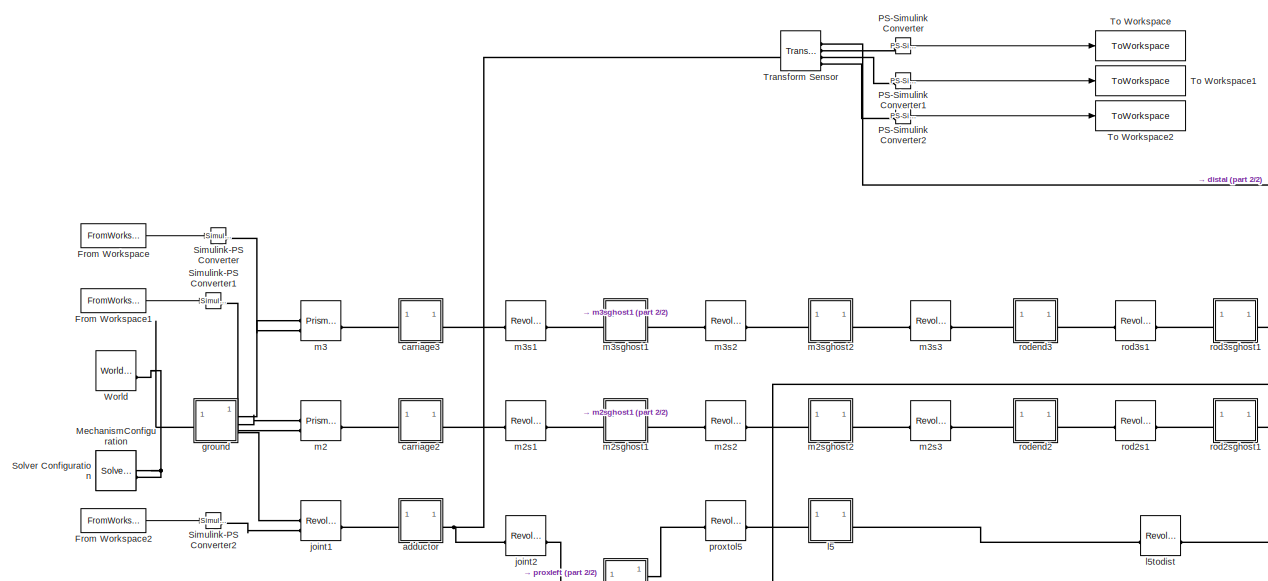
[diagram: root canvas - part 1/2, full width, middle band]
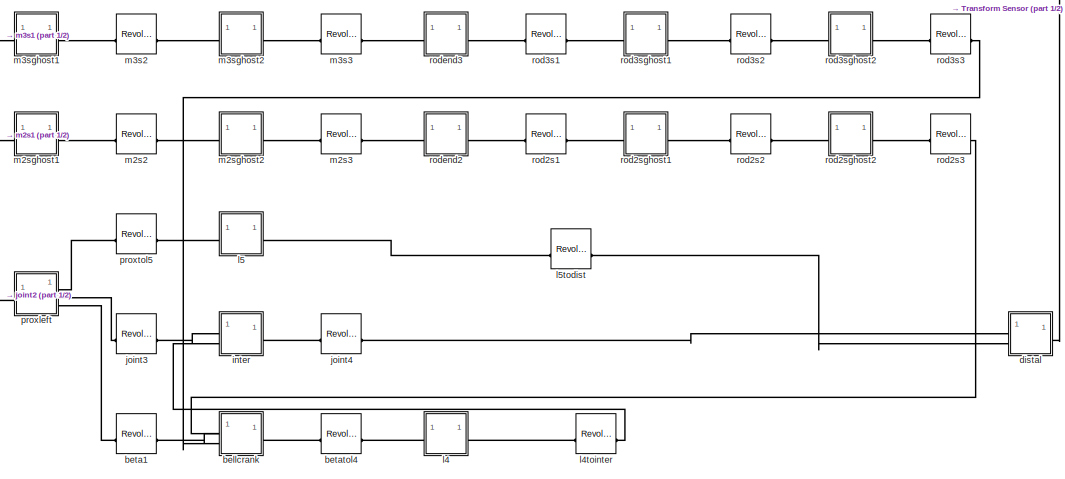
[diagram: root canvas - part 2/2, bottom right region]
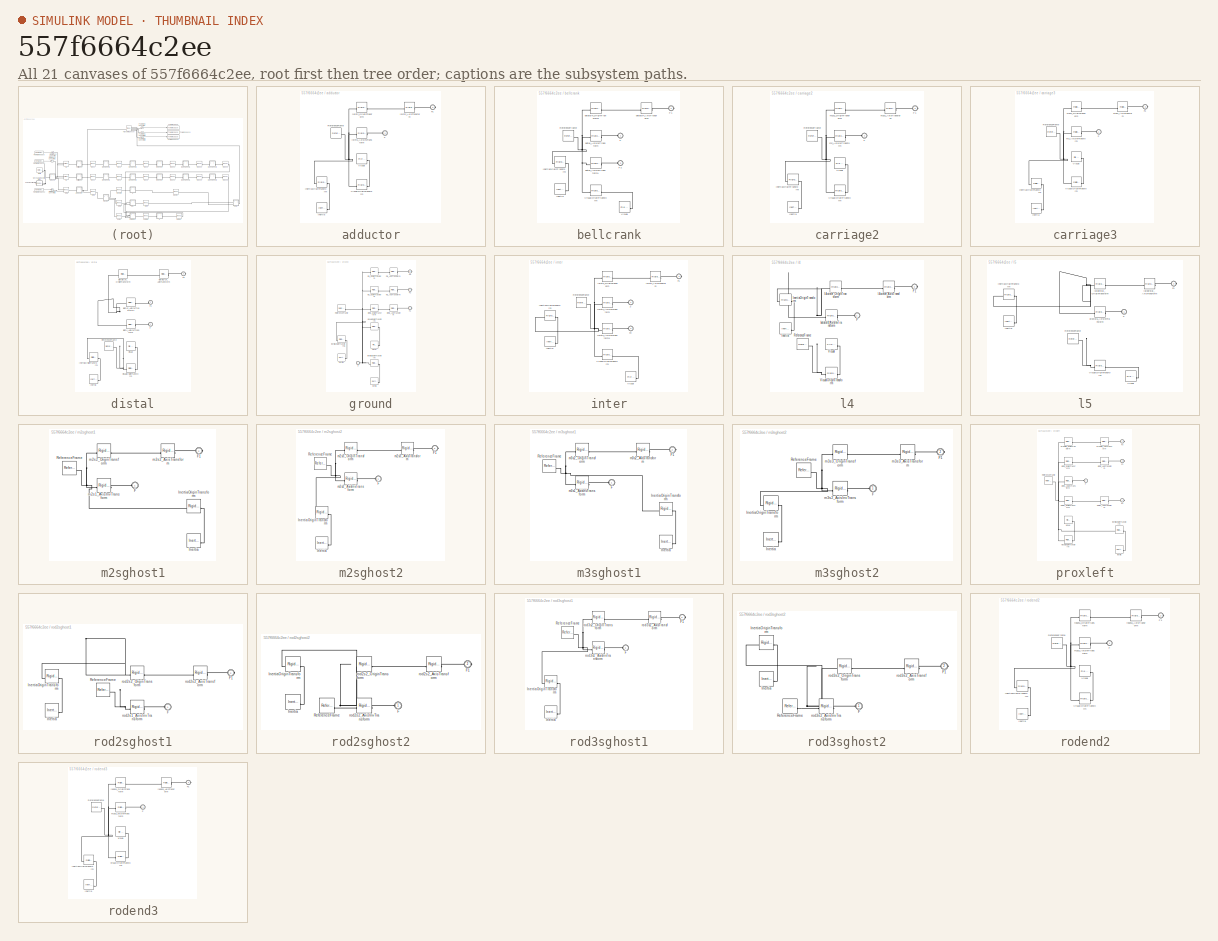
[diagram: thumbnail index - all 21 canvases of the model, root first then tree order]
MODEL slx_557f6664c2ee
KIND model
CONFIG AbsTol = auto
CONFIG EnableMultiTasking = off
CONFIG FixedStep = auto
CONFIG MaxStep = auto
CONFIG MinStep = auto
CONFIG RelTol = 1e-3
CONFIG SampleTimeConstraint = Unconstrained
CONFIG SolverName = VariableStepAuto
CONFIG StartTime = 0.0
CONFIG StopTime = .3
BLOCK [FromWorkspace] From Workspace
  VariableName = m3
BLOCK [FromWorkspace] From Workspace1
  VariableName = m2
BLOCK [FromWorkspace] From Workspace2
  VariableName = m1
BLOCK [Reference] MechanismConfiguration  REF=sm_lib/Utilities/Mechanism
Configuration
  SourceBlock = sm_lib/Utilities/Mechanism\nConfiguration
  SourceType = Mechanism\nConfiguration
BLOCK [Reference] PS-Simulink Converter  REF=nesl_utility/PS-Simulink
Converter
  SourceBlock = nesl_utility/PS-Simulink\nConverter
  SourceType = PS-Simulink\nConverter
BLOCK [Reference] PS-Simulink Converter1  REF=nesl_utility/PS-Simulink
Converter
  SourceBlock = nesl_utility/PS-Simulink\nConverter
  SourceType = PS-Simulink\nConverter
BLOCK [Reference] PS-Simulink Converter2  REF=nesl_utility/PS-Simulink
Converter
  SourceBlock = nesl_utility/PS-Simulink\nConverter
  SourceType = PS-Simulink\nConverter
BLOCK [Reference] Simulink-PS Converter  REF=nesl_utility/Simulink-PS
Converter
  SourceBlock = nesl_utility/Simulink-PS\nConverter
  SourceType = Simulink-PS\nConverter
BLOCK [Reference] Simulink-PS Converter1  REF=nesl_utility/Simulink-PS
Converter
  SourceBlock = nesl_utility/Simulink-PS\nConverter
  SourceType = Simulink-PS\nConverter
BLOCK [Reference] Simulink-PS Converter2  REF=nesl_utility/Simulink-PS
Converter
  SourceBlock = nesl_utility/Simulink-PS\nConverter
  SourceType = Simulink-PS\nConverter
BLOCK [Reference] Solver Configuration  REF=nesl_utility/Solver
Configuration
  SourceBlock = nesl_utility/Solver\nConfiguration
  SourceType = Solver\nConfiguration
BLOCK [ToWorkspace] To Workspace
  FixptAsFi = on
  MaxDataPoints = inf
  SampleTime = -1
  SaveFormat = Timeseries
  VariableName = simout
BLOCK [ToWorkspace] To Workspace1
  FixptAsFi = on
  MaxDataPoints = inf
  SampleTime = -1
  SaveFormat = Timeseries
  VariableName = simout1
BLOCK [ToWorkspace] To Workspace2
  FixptAsFi = on
  MaxDataPoints = inf
  SampleTime = -1
  SaveFormat = Timeseries
  VariableName = simout2
BLOCK [Reference] Transform Sensor  REF=sm_lib/Frames and
Transforms/Transform
Sensor
  SourceBlock = sm_lib/Frames and\nTransforms/Transform\nSensor
  SourceType = Transform\nSensor
BLOCK [Reference] World  REF=sm_lib/Frames and
Transforms/World Frame
  SourceBlock = sm_lib/Frames and\nTransforms/World Frame
  SourceType = World Frame
BLOCK [SubSystem] adductor
BLOCK [PMIOPort] adductor/F
  Side = Left
BLOCK [PMIOPort] adductor/F1
  Port = 2
  Side = Right
BLOCK [Reference] adductor/Inertia  REF=sm_lib/Body Elements/Inertia
  SourceBlock = sm_lib/Body Elements/Inertia
  SourceType = Inertia
BLOCK [Reference] adductor/InertiaOriginTransform  REF=sm_lib/Frames and
Transforms/Rigid
Transform
  SourceBlock = sm_lib/Frames and\nTransforms/Rigid\nTransform
  SourceType = Rigid\nTransform
BLOCK [Reference] adductor/ReferenceFrame  REF=sm_lib/Frames and
Transforms/Reference
Frame
  SourceBlock = sm_lib/Frames and\nTransforms/Reference\nFrame
  SourceType = Reference\nFrame
BLOCK [Reference] adductor/Visual  REF=sm_lib/Body Elements/File Solid
  SourceBlock = sm_lib/Body Elements/File Solid
  SourceType = File Solid
BLOCK [Reference] adductor/VisualOriginTransform  REF=sm_lib/Frames and
Transforms/Rigid
Transform
  SourceBlock = sm_lib/Frames and\nTransforms/Rigid\nTransform
  SourceType = Rigid\nTransform
BLOCK [Reference] adductor/joint1_AxisInvTransform  REF=sm_lib/Frames and
Transforms/Rigid
Transform
  SourceBlock = sm_lib/Frames and\nTransforms/Rigid\nTransform
  SourceType = Rigid\nTransform
BLOCK [Reference] adductor/joint2_AxisTransform  REF=sm_lib/Frames and
Transforms/Rigid
Transform
  SourceBlock = sm_lib/Frames and\nTransforms/Rigid\nTransform
  SourceType = Rigid\nTransform
BLOCK [Reference] adductor/joint2_OriginTransform  REF=sm_lib/Frames and
Transforms/Rigid
Transform
  SourceBlock = sm_lib/Frames and\nTransforms/Rigid\nTransform
  SourceType = Rigid\nTransform
BLOCK [SubSystem] bellcrank
BLOCK [PMIOPort] bellcrank/F
  Side = Left
BLOCK [PMIOPort] bellcrank/F1
  Port = 2
  Side = Right
BLOCK [PMIOPort] bellcrank/F2
  Port = 3
  Side = Left
BLOCK [Reference] bellcrank/Inertia  REF=sm_lib/Body Elements/Inertia
  SourceBlock = sm_lib/Body Elements/Inertia
  SourceType = Inertia
BLOCK [Reference] bellcrank/InertiaOriginTransform  REF=sm_lib/Frames and
Transforms/Rigid
Transform
  SourceBlock = sm_lib/Frames and\nTransforms/Rigid\nTransform
  SourceType = Rigid\nTransform
BLOCK [Reference] bellcrank/ReferenceFrame  REF=sm_lib/Frames and
Transforms/Reference
Frame
  SourceBlock = sm_lib/Frames and\nTransforms/Reference\nFrame
  SourceType = Reference\nFrame
BLOCK [Reference] bellcrank/Visual  REF=sm_lib/Body Elements/File Solid
  SourceBlock = sm_lib/Body Elements/File Solid
  SourceType = File Solid
BLOCK [Reference] bellcrank/VisualOriginTransform  REF=sm_lib/Frames and
Transforms/Rigid
Transform
  SourceBlock = sm_lib/Frames and\nTransforms/Rigid\nTransform
  SourceType = Rigid\nTransform
BLOCK [Reference] bellcrank/beta1_AxisInvTransform  REF=sm_lib/Frames and
Transforms/Rigid
Transform
  SourceBlock = sm_lib/Frames and\nTransforms/Rigid\nTransform
  SourceType = Rigid\nTransform
BLOCK [Reference] bellcrank/beta1_AxisInvTransform1  REF=sm_lib/Frames and
Transforms/Rigid
Transform
  SourceBlock = sm_lib/Frames and\nTransforms/Rigid\nTransform
  SourceType = Rigid\nTransform
BLOCK [Reference] bellcrank/betatol4_AxisTransform  REF=sm_lib/Frames and
Transforms/Rigid
Transform
  SourceBlock = sm_lib/Frames and\nTransforms/Rigid\nTransform
  SourceType = Rigid\nTransform
BLOCK [Reference] bellcrank/betatol4_OriginTransform  REF=sm_lib/Frames and
Transforms/Rigid
Transform
  SourceBlock = sm_lib/Frames and\nTransforms/Rigid\nTransform
  SourceType = Rigid\nTransform
BLOCK [Reference] beta1  REF=sm_lib/Joints/Revolute Joint
  SourceBlock = sm_lib/Joints/Revolute Joint
  SourceType = Revolute Joint
BLOCK [Reference] betatol4  REF=sm_lib/Joints/Revolute Joint
  SourceBlock = sm_lib/Joints/Revolute Joint
  SourceType = Revolute Joint
BLOCK [SubSystem] carriage2
BLOCK [PMIOPort] carriage2/F
  Side = Left
BLOCK [PMIOPort] carriage2/F1
  Port = 2
  Side = Right
BLOCK [Reference] carriage2/Inertia  REF=sm_lib/Body Elements/Inertia
  SourceBlock = sm_lib/Body Elements/Inertia
  SourceType = Inertia
BLOCK [Reference] carriage2/InertiaOriginTransform  REF=sm_lib/Frames and
Transforms/Rigid
Transform
  SourceBlock = sm_lib/Frames and\nTransforms/Rigid\nTransform
  SourceType = Rigid\nTransform
BLOCK [Reference] carriage2/ReferenceFrame  REF=sm_lib/Frames and
Transforms/Reference
Frame
  SourceBlock = sm_lib/Frames and\nTransforms/Reference\nFrame
  SourceType = Reference\nFrame
BLOCK [Reference] carriage2/Visual  REF=sm_lib/Body Elements/File Solid
  SourceBlock = sm_lib/Body Elements/File Solid
  SourceType = File Solid
BLOCK [Reference] carriage2/VisualOriginTransform  REF=sm_lib/Frames and
Transforms/Rigid
Transform
  SourceBlock = sm_lib/Frames and\nTransforms/Rigid\nTransform
  SourceType = Rigid\nTransform
BLOCK [Reference] carriage2/m2_AxisInvTransform  REF=sm_lib/Frames and
Transforms/Rigid
Transform
  SourceBlock = sm_lib/Frames and\nTransforms/Rigid\nTransform
  SourceType = Rigid\nTransform
BLOCK [Reference] carriage2/m2s1_AxisTransform  REF=sm_lib/Frames and
Transforms/Rigid
Transform
  SourceBlock = sm_lib/Frames and\nTransforms/Rigid\nTransform
  SourceType = Rigid\nTransform
BLOCK [Reference] carriage2/m2s1_OriginTransform  REF=sm_lib/Frames and
Transforms/Rigid
Transform
  SourceBlock = sm_lib/Frames and\nTransforms/Rigid\nTransform
  SourceType = Rigid\nTransform
BLOCK [SubSystem] carriage3
BLOCK [PMIOPort] carriage3/F
  Side = Left
BLOCK [PMIOPort] carriage3/F1
  Port = 2
  Side = Right
BLOCK [Reference] carriage3/Inertia  REF=sm_lib/Body Elements/Inertia
  SourceBlock = sm_lib/Body Elements/Inertia
  SourceType = Inertia
BLOCK [Reference] carriage3/InertiaOriginTransform  REF=sm_lib/Frames and
Transforms/Rigid
Transform
  SourceBlock = sm_lib/Frames and\nTransforms/Rigid\nTransform
  SourceType = Rigid\nTransform
BLOCK [Reference] carriage3/ReferenceFrame  REF=sm_lib/Frames and
Transforms/Reference
Frame
  SourceBlock = sm_lib/Frames and\nTransforms/Reference\nFrame
  SourceType = Reference\nFrame
BLOCK [Reference] carriage3/Visual  REF=sm_lib/Body Elements/File Solid
  SourceBlock = sm_lib/Body Elements/File Solid
  SourceType = File Solid
BLOCK [Reference] carriage3/VisualOriginTransform  REF=sm_lib/Frames and
Transforms/Rigid
Transform
  SourceBlock = sm_lib/Frames and\nTransforms/Rigid\nTransform
  SourceType = Rigid\nTransform
BLOCK [Reference] carriage3/m3_AxisInvTransform  REF=sm_lib/Frames and
Transforms/Rigid
Transform
  SourceBlock = sm_lib/Frames and\nTransforms/Rigid\nTransform
  SourceType = Rigid\nTransform
BLOCK [Reference] carriage3/m3s1_AxisTransform  REF=sm_lib/Frames and
Transforms/Rigid
Transform
  SourceBlock = sm_lib/Frames and\nTransforms/Rigid\nTransform
  SourceType = Rigid\nTransform
BLOCK [Reference] carriage3/m3s1_OriginTransform  REF=sm_lib/Frames and
Transforms/Rigid
Transform
  SourceBlock = sm_lib/Frames and\nTransforms/Rigid\nTransform
  SourceType = Rigid\nTransform
BLOCK [SubSystem] distal
BLOCK [PMIOPort] distal/F
  Side = Left
BLOCK [PMIOPort] distal/F1
  Port = 2
  Side = Left
BLOCK [PMIOPort] distal/F2
  Port = 3
  Side = Right
BLOCK [Reference] distal/Inertia  REF=sm_lib/Body Elements/Inertia
  SourceBlock = sm_lib/Body Elements/Inertia
  SourceType = Inertia
BLOCK [Reference] distal/InertiaOriginTransform  REF=sm_lib/Frames and
Transforms/Rigid
Transform
  SourceBlock = sm_lib/Frames and\nTransforms/Rigid\nTransform
  SourceType = Rigid\nTransform
BLOCK [Reference] distal/ReferenceFrame  REF=sm_lib/Frames and
Transforms/Reference
Frame
  SourceBlock = sm_lib/Frames and\nTransforms/Reference\nFrame
  SourceType = Reference\nFrame
BLOCK [Reference] distal/Visual  REF=sm_lib/Body Elements/File Solid
  SourceBlock = sm_lib/Body Elements/File Solid
  SourceType = File Solid
BLOCK [Reference] distal/VisualOriginTransform  REF=sm_lib/Frames and
Transforms/Rigid
Transform
  SourceBlock = sm_lib/Frames and\nTransforms/Rigid\nTransform
  SourceType = Rigid\nTransform
BLOCK [Reference] distal/distalOUT_AxisTransform  REF=sm_lib/Frames and
Transforms/Rigid
Transform
  SourceBlock = sm_lib/Frames and\nTransforms/Rigid\nTransform
  SourceType = Rigid\nTransform
BLOCK [Reference] distal/distalOUT_OriginTransform  REF=sm_lib/Frames and
Transforms/Rigid
Transform
  SourceBlock = sm_lib/Frames and\nTransforms/Rigid\nTransform
  SourceType = Rigid\nTransform
BLOCK [Reference] distal/joint42_AxisInvTransform1  REF=sm_lib/Frames and
Transforms/Rigid
Transform
  SourceBlock = sm_lib/Frames and\nTransforms/Rigid\nTransform
  SourceType = Rigid\nTransform
BLOCK [Reference] distal/joint4_AxisInvTransform  REF=sm_lib/Frames and
Transforms/Rigid
Transform
  SourceBlock = sm_lib/Frames and\nTransforms/Rigid\nTransform
  SourceType = Rigid\nTransform
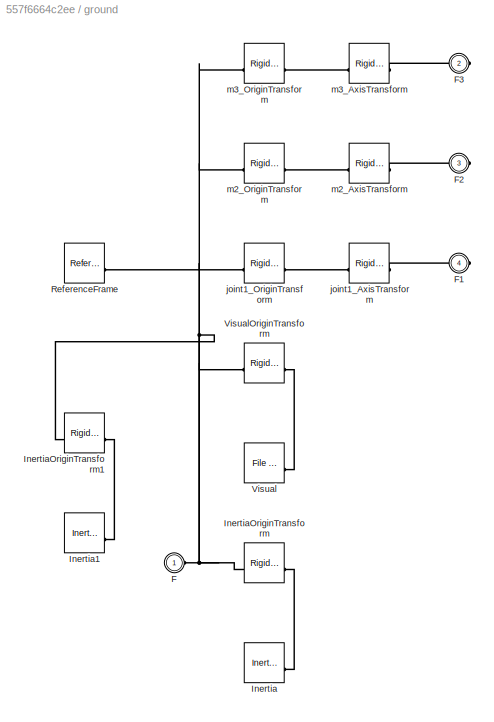
BLOCK [SubSystem] ground
BLOCK [PMIOPort] ground/F
  Side = Left
BLOCK [PMIOPort] ground/F1
  Port = 4
  Side = Right
BLOCK [PMIOPort] ground/F2
  Port = 3
  Side = Right
BLOCK [PMIOPort] ground/F3
  Port = 2
  Side = Right
BLOCK [Reference] ground/Inertia  REF=sm_lib/Body Elements/Inertia
  SourceBlock = sm_lib/Body Elements/Inertia
  SourceType = Inertia
BLOCK [Reference] ground/Inertia1  REF=sm_lib/Body Elements/Inertia
  SourceBlock = sm_lib/Body Elements/Inertia
  SourceType = Inertia
BLOCK [Reference] ground/InertiaOriginTransform  REF=sm_lib/Frames and
Transforms/Rigid
Transform
  SourceBlock = sm_lib/Frames and\nTransforms/Rigid\nTransform
  SourceType = Rigid\nTransform
BLOCK [Reference] ground/InertiaOriginTransform1  REF=sm_lib/Frames and
Transforms/Rigid
Transform
  SourceBlock = sm_lib/Frames and\nTransforms/Rigid\nTransform
  SourceType = Rigid\nTransform
BLOCK [Reference] ground/ReferenceFrame  REF=sm_lib/Frames and
Transforms/Reference
Frame
  SourceBlock = sm_lib/Frames and\nTransforms/Reference\nFrame
  SourceType = Reference\nFrame
BLOCK [Reference] ground/Visual  REF=sm_lib/Body Elements/File Solid
  SourceBlock = sm_lib/Body Elements/File Solid
  SourceType = File Solid
BLOCK [Reference] ground/VisualOriginTransform  REF=sm_lib/Frames and
Transforms/Rigid
Transform
  SourceBlock = sm_lib/Frames and\nTransforms/Rigid\nTransform
  SourceType = Rigid\nTransform
BLOCK [Reference] ground/joint1_AxisTransform  REF=sm_lib/Frames and
Transforms/Rigid
Transform
  SourceBlock = sm_lib/Frames and\nTransforms/Rigid\nTransform
  SourceType = Rigid\nTransform
BLOCK [Reference] ground/joint1_OriginTransform  REF=sm_lib/Frames and
Transforms/Rigid
Transform
  SourceBlock = sm_lib/Frames and\nTransforms/Rigid\nTransform
  SourceType = Rigid\nTransform
BLOCK [Reference] ground/m2_AxisTransform  REF=sm_lib/Frames and
Transforms/Rigid
Transform
  SourceBlock = sm_lib/Frames and\nTransforms/Rigid\nTransform
  SourceType = Rigid\nTransform
BLOCK [Reference] ground/m2_OriginTransform  REF=sm_lib/Frames and
Transforms/Rigid
Transform
  SourceBlock = sm_lib/Frames and\nTransforms/Rigid\nTransform
  SourceType = Rigid\nTransform
BLOCK [Reference] ground/m3_AxisTransform  REF=sm_lib/Frames and
Transforms/Rigid
Transform
  SourceBlock = sm_lib/Frames and\nTransforms/Rigid\nTransform
  SourceType = Rigid\nTransform
BLOCK [Reference] ground/m3_OriginTransform  REF=sm_lib/Frames and
Transforms/Rigid
Transform
  SourceBlock = sm_lib/Frames and\nTransforms/Rigid\nTransform
  SourceType = Rigid\nTransform
BLOCK [SubSystem] inter
BLOCK [PMIOPort] inter/F
  Side = Left
BLOCK [PMIOPort] inter/F1
  Port = 2
  Side = Right
BLOCK [PMIOPort] inter/F2
  Port = 3
  Side = Left
BLOCK [Reference] inter/Inertia  REF=sm_lib/Body Elements/Inertia
  SourceBlock = sm_lib/Body Elements/Inertia
  SourceType = Inertia
BLOCK [Reference] inter/InertiaOriginTransform  REF=sm_lib/Frames and
Transforms/Rigid
Transform
  SourceBlock = sm_lib/Frames and\nTransforms/Rigid\nTransform
  SourceType = Rigid\nTransform
BLOCK [Reference] inter/ReferenceFrame  REF=sm_lib/Frames and
Transforms/Reference
Frame
  SourceBlock = sm_lib/Frames and\nTransforms/Reference\nFrame
  SourceType = Reference\nFrame
BLOCK [Reference] inter/Visual  REF=sm_lib/Body Elements/File Solid
  SourceBlock = sm_lib/Body Elements/File Solid
  SourceType = File Solid
BLOCK [Reference] inter/VisualOriginTransform  REF=sm_lib/Frames and
Transforms/Rigid
Transform
  SourceBlock = sm_lib/Frames and\nTransforms/Rigid\nTransform
  SourceType = Rigid\nTransform
BLOCK [Reference] inter/joint3_AxisInvTransform  REF=sm_lib/Frames and
Transforms/Rigid
Transform
  SourceBlock = sm_lib/Frames and\nTransforms/Rigid\nTransform
  SourceType = Rigid\nTransform
BLOCK [Reference] inter/joint3_AxisInvTransform1  REF=sm_lib/Frames and
Transforms/Rigid
Transform
  SourceBlock = sm_lib/Frames and\nTransforms/Rigid\nTransform
  SourceType = Rigid\nTransform
BLOCK [Reference] inter/joint4_AxisTransform  REF=sm_lib/Frames and
Transforms/Rigid
Transform
  SourceBlock = sm_lib/Frames and\nTransforms/Rigid\nTransform
  SourceType = Rigid\nTransform
BLOCK [Reference] inter/joint4_OriginTransform  REF=sm_lib/Frames and
Transforms/Rigid
Transform
  SourceBlock = sm_lib/Frames and\nTransforms/Rigid\nTransform
  SourceType = Rigid\nTransform
BLOCK [Reference] joint1  REF=sm_lib/Joints/Revolute Joint
  SourceBlock = sm_lib/Joints/Revolute Joint
  SourceType = Revolute Joint
BLOCK [Reference] joint2  REF=sm_lib/Joints/Revolute Joint
  SourceBlock = sm_lib/Joints/Revolute Joint
  SourceType = Revolute Joint
BLOCK [Reference] joint3  REF=sm_lib/Joints/Revolute Joint
  SourceBlock = sm_lib/Joints/Revolute Joint
  SourceType = Revolute Joint
BLOCK [Reference] joint4  REF=sm_lib/Joints/Revolute Joint
  SourceBlock = sm_lib/Joints/Revolute Joint
  SourceType = Revolute Joint
BLOCK [SubSystem] l4
BLOCK [PMIOPort] l4/F
  Side = Left
BLOCK [PMIOPort] l4/F1
  Port = 2
  Side = Right
BLOCK [Reference] l4/Inertia  REF=sm_lib/Body Elements/Inertia
  SourceBlock = sm_lib/Body Elements/Inertia
  SourceType = Inertia
BLOCK [Reference] l4/InertiaOriginTransform  REF=sm_lib/Frames and
Transforms/Rigid
Transform
  SourceBlock = sm_lib/Frames and\nTransforms/Rigid\nTransform
  SourceType = Rigid\nTransform
BLOCK [Reference] l4/ReferenceFrame  REF=sm_lib/Frames and
Transforms/Reference
Frame
  SourceBlock = sm_lib/Frames and\nTransforms/Reference\nFrame
  SourceType = Reference\nFrame
BLOCK [Reference] l4/Visual  REF=sm_lib/Body Elements/File Solid
  SourceBlock = sm_lib/Body Elements/File Solid
  SourceType = File Solid
BLOCK [Reference] l4/VisualOriginTransform  REF=sm_lib/Frames and
Transforms/Rigid
Transform
  SourceBlock = sm_lib/Frames and\nTransforms/Rigid\nTransform
  SourceType = Rigid\nTransform
BLOCK [Reference] l4/betatol4_AxisInvTransform  REF=sm_lib/Frames and
Transforms/Rigid
Transform
  SourceBlock = sm_lib/Frames and\nTransforms/Rigid\nTransform
  SourceType = Rigid\nTransform
BLOCK [Reference] l4/l4tointer_AxisTransform  REF=sm_lib/Frames and
Transforms/Rigid
Transform
  SourceBlock = sm_lib/Frames and\nTransforms/Rigid\nTransform
  SourceType = Rigid\nTransform
BLOCK [Reference] l4/l4tointer_OriginTransform  REF=sm_lib/Frames and
Transforms/Rigid
Transform
  SourceBlock = sm_lib/Frames and\nTransforms/Rigid\nTransform
  SourceType = Rigid\nTransform
BLOCK [Reference] l4tointer  REF=sm_lib/Joints/Revolute Joint
  SourceBlock = sm_lib/Joints/Revolute Joint
  SourceType = Revolute Joint
BLOCK [SubSystem] l5
BLOCK [PMIOPort] l5/F
  Side = Left
BLOCK [PMIOPort] l5/F1
  Port = 2
  Side = Right
BLOCK [Reference] l5/Inertia  REF=sm_lib/Body Elements/Inertia
  SourceBlock = sm_lib/Body Elements/Inertia
  SourceType = Inertia
BLOCK [Reference] l5/InertiaOriginTransform  REF=sm_lib/Frames and
Transforms/Rigid
Transform
  SourceBlock = sm_lib/Frames and\nTransforms/Rigid\nTransform
  SourceType = Rigid\nTransform
BLOCK [Reference] l5/ReferenceFrame  REF=sm_lib/Frames and
Transforms/Reference
Frame
  SourceBlock = sm_lib/Frames and\nTransforms/Reference\nFrame
  SourceType = Reference\nFrame
BLOCK [Reference] l5/Visual  REF=sm_lib/Body Elements/File Solid
  SourceBlock = sm_lib/Body Elements/File Solid
  SourceType = File Solid
BLOCK [Reference] l5/VisualOriginTransform  REF=sm_lib/Frames and
Transforms/Rigid
Transform
  SourceBlock = sm_lib/Frames and\nTransforms/Rigid\nTransform
  SourceType = Rigid\nTransform
BLOCK [Reference] l5/l5todistal_AxisTransform  REF=sm_lib/Frames and
Transforms/Rigid
Transform
  SourceBlock = sm_lib/Frames and\nTransforms/Rigid\nTransform
  SourceType = Rigid\nTransform
BLOCK [Reference] l5/l5todistal_OriginTransform  REF=sm_lib/Frames and
Transforms/Rigid
Transform
  SourceBlock = sm_lib/Frames and\nTransforms/Rigid\nTransform
  SourceType = Rigid\nTransform
BLOCK [Reference] l5/proxtol5_AxisInvTransform  REF=sm_lib/Frames and
Transforms/Rigid
Transform
  SourceBlock = sm_lib/Frames and\nTransforms/Rigid\nTransform
  SourceType = Rigid\nTransform
BLOCK [Reference] l5todist  REF=sm_lib/Joints/Revolute Joint
  SourceBlock = sm_lib/Joints/Revolute Joint
  SourceType = Revolute Joint
BLOCK [Reference] m2  REF=sm_lib/Joints/Prismatic
Joint
  SourceBlock = sm_lib/Joints/Prismatic\nJoint
  SourceType = Prismatic\nJoint
BLOCK [Reference] m2s1  REF=sm_lib/Joints/Revolute Joint
  SourceBlock = sm_lib/Joints/Revolute Joint
  SourceType = Revolute Joint
BLOCK [Reference] m2s2  REF=sm_lib/Joints/Revolute Joint
  SourceBlock = sm_lib/Joints/Revolute Joint
  SourceType = Revolute Joint
BLOCK [Reference] m2s3  REF=sm_lib/Joints/Revolute Joint
  SourceBlock = sm_lib/Joints/Revolute Joint
  SourceType = Revolute Joint
BLOCK [SubSystem] m2sghost1
BLOCK [PMIOPort] m2sghost1/F
  Side = Left
BLOCK [PMIOPort] m2sghost1/F1
  Port = 2
  Side = Right
BLOCK [Reference] m2sghost1/Inertia  REF=sm_lib/Body Elements/Inertia
  SourceBlock = sm_lib/Body Elements/Inertia
  SourceType = Inertia
BLOCK [Reference] m2sghost1/InertiaOriginTransform  REF=sm_lib/Frames and
Transforms/Rigid
Transform
  SourceBlock = sm_lib/Frames and\nTransforms/Rigid\nTransform
  SourceType = Rigid\nTransform
BLOCK [Reference] m2sghost1/ReferenceFrame  REF=sm_lib/Frames and
Transforms/Reference
Frame
  SourceBlock = sm_lib/Frames and\nTransforms/Reference\nFrame
  SourceType = Reference\nFrame
BLOCK [Reference] m2sghost1/m2s1_AxisInvTransform  REF=sm_lib/Frames and
Transforms/Rigid
Transform
  SourceBlock = sm_lib/Frames and\nTransforms/Rigid\nTransform
  SourceType = Rigid\nTransform
BLOCK [Reference] m2sghost1/m2s2_AxisTransform  REF=sm_lib/Frames and
Transforms/Rigid
Transform
  SourceBlock = sm_lib/Frames and\nTransforms/Rigid\nTransform
  SourceType = Rigid\nTransform
BLOCK [Reference] m2sghost1/m2s2_OriginTransform  REF=sm_lib/Frames and
Transforms/Rigid
Transform
  SourceBlock = sm_lib/Frames and\nTransforms/Rigid\nTransform
  SourceType = Rigid\nTransform
BLOCK [SubSystem] m2sghost2
BLOCK [PMIOPort] m2sghost2/F
  Side = Left
BLOCK [PMIOPort] m2sghost2/F1
  Port = 2
  Side = Right
BLOCK [Reference] m2sghost2/Inertia  REF=sm_lib/Body Elements/Inertia
  SourceBlock = sm_lib/Body Elements/Inertia
  SourceType = Inertia
BLOCK [Reference] m2sghost2/InertiaOriginTransform  REF=sm_lib/Frames and
Transforms/Rigid
Transform
  SourceBlock = sm_lib/Frames and\nTransforms/Rigid\nTransform
  SourceType = Rigid\nTransform
BLOCK [Reference] m2sghost2/ReferenceFrame  REF=sm_lib/Frames and
Transforms/Reference
Frame
  SourceBlock = sm_lib/Frames and\nTransforms/Reference\nFrame
  SourceType = Reference\nFrame
BLOCK [Reference] m2sghost2/m2s2_AxisInvTransform  REF=sm_lib/Frames and
Transforms/Rigid
Transform
  SourceBlock = sm_lib/Frames and\nTransforms/Rigid\nTransform
  SourceType = Rigid\nTransform
BLOCK [Reference] m2sghost2/m2s3_AxisTransform  REF=sm_lib/Frames and
Transforms/Rigid
Transform
  SourceBlock = sm_lib/Frames and\nTransforms/Rigid\nTransform
  SourceType = Rigid\nTransform
BLOCK [Reference] m2sghost2/m2s3_OriginTransform  REF=sm_lib/Frames and
Transforms/Rigid
Transform
  SourceBlock = sm_lib/Frames and\nTransforms/Rigid\nTransform
  SourceType = Rigid\nTransform
BLOCK [Reference] m3  REF=sm_lib/Joints/Prismatic
Joint
  SourceBlock = sm_lib/Joints/Prismatic\nJoint
  SourceType = Prismatic\nJoint
BLOCK [Reference] m3s1  REF=sm_lib/Joints/Revolute Joint
  SourceBlock = sm_lib/Joints/Revolute Joint
  SourceType = Revolute Joint
BLOCK [Reference] m3s2  REF=sm_lib/Joints/Revolute Joint
  SourceBlock = sm_lib/Joints/Revolute Joint
  SourceType = Revolute Joint
BLOCK [Reference] m3s3  REF=sm_lib/Joints/Revolute Joint
  SourceBlock = sm_lib/Joints/Revolute Joint
  SourceType = Revolute Joint
BLOCK [SubSystem] m3sghost1
BLOCK [PMIOPort] m3sghost1/F
  Side = Left
BLOCK [PMIOPort] m3sghost1/F1
  Port = 2
  Side = Right
BLOCK [Reference] m3sghost1/Inertia  REF=sm_lib/Body Elements/Inertia
  SourceBlock = sm_lib/Body Elements/Inertia
  SourceType = Inertia
BLOCK [Reference] m3sghost1/InertiaOriginTransform  REF=sm_lib/Frames and
Transforms/Rigid
Transform
  SourceBlock = sm_lib/Frames and\nTransforms/Rigid\nTransform
  SourceType = Rigid\nTransform
BLOCK [Reference] m3sghost1/ReferenceFrame  REF=sm_lib/Frames and
Transforms/Reference
Frame
  SourceBlock = sm_lib/Frames and\nTransforms/Reference\nFrame
  SourceType = Reference\nFrame
BLOCK [Reference] m3sghost1/m3s1_AxisInvTransform  REF=sm_lib/Frames and
Transforms/Rigid
Transform
  SourceBlock = sm_lib/Frames and\nTransforms/Rigid\nTransform
  SourceType = Rigid\nTransform
BLOCK [Reference] m3sghost1/m3s2_AxisTransform  REF=sm_lib/Frames and
Transforms/Rigid
Transform
  SourceBlock = sm_lib/Frames and\nTransforms/Rigid\nTransform
  SourceType = Rigid\nTransform
BLOCK [Reference] m3sghost1/m3s2_OriginTransform  REF=sm_lib/Frames and
Transforms/Rigid
Transform
  SourceBlock = sm_lib/Frames and\nTransforms/Rigid\nTransform
  SourceType = Rigid\nTransform
BLOCK [SubSystem] m3sghost2
BLOCK [PMIOPort] m3sghost2/F
  Side = Left
BLOCK [PMIOPort] m3sghost2/F1
  Port = 2
  Side = Right
BLOCK [Reference] m3sghost2/Inertia  REF=sm_lib/Body Elements/Inertia
  SourceBlock = sm_lib/Body Elements/Inertia
  SourceType = Inertia
BLOCK [Reference] m3sghost2/InertiaOriginTransform  REF=sm_lib/Frames and
Transforms/Rigid
Transform
  SourceBlock = sm_lib/Frames and\nTransforms/Rigid\nTransform
  SourceType = Rigid\nTransform
BLOCK [Reference] m3sghost2/ReferenceFrame  REF=sm_lib/Frames and
Transforms/Reference
Frame
  SourceBlock = sm_lib/Frames and\nTransforms/Reference\nFrame
  SourceType = Reference\nFrame
BLOCK [Reference] m3sghost2/m3s2_AxisInvTransform  REF=sm_lib/Frames and
Transforms/Rigid
Transform
  SourceBlock = sm_lib/Frames and\nTransforms/Rigid\nTransform
  SourceType = Rigid\nTransform
BLOCK [Reference] m3sghost2/m3s3_AxisTransform  REF=sm_lib/Frames and
Transforms/Rigid
Transform
  SourceBlock = sm_lib/Frames and\nTransforms/Rigid\nTransform
  SourceType = Rigid\nTransform
BLOCK [Reference] m3sghost2/m3s3_OriginTransform  REF=sm_lib/Frames and
Transforms/Rigid
Transform
  SourceBlock = sm_lib/Frames and\nTransforms/Rigid\nTransform
  SourceType = Rigid\nTransform
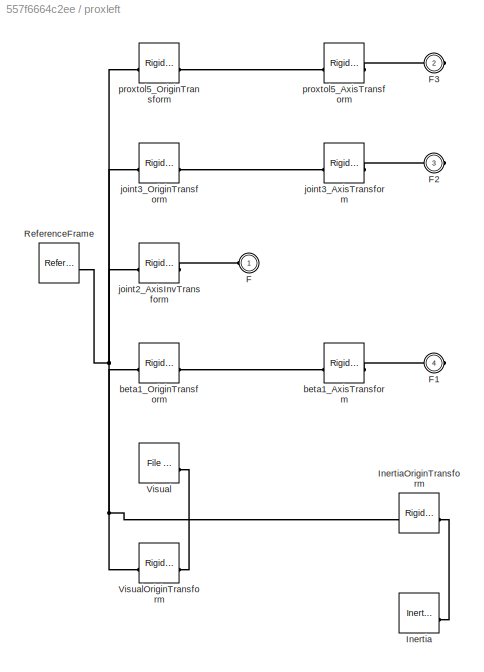
BLOCK [SubSystem] proxleft
BLOCK [PMIOPort] proxleft/F
  Side = Left
BLOCK [PMIOPort] proxleft/F1
  Port = 4
  Side = Right
BLOCK [PMIOPort] proxleft/F2
  Port = 3
  Side = Right
BLOCK [PMIOPort] proxleft/F3
  Port = 2
  Side = Right
BLOCK [Reference] proxleft/Inertia  REF=sm_lib/Body Elements/Inertia
  SourceBlock = sm_lib/Body Elements/Inertia
  SourceType = Inertia
BLOCK [Reference] proxleft/InertiaOriginTransform  REF=sm_lib/Frames and
Transforms/Rigid
Transform
  SourceBlock = sm_lib/Frames and\nTransforms/Rigid\nTransform
  SourceType = Rigid\nTransform
BLOCK [Reference] proxleft/ReferenceFrame  REF=sm_lib/Frames and
Transforms/Reference
Frame
  SourceBlock = sm_lib/Frames and\nTransforms/Reference\nFrame
  SourceType = Reference\nFrame
BLOCK [Reference] proxleft/Visual  REF=sm_lib/Body Elements/File Solid
  SourceBlock = sm_lib/Body Elements/File Solid
  SourceType = File Solid
BLOCK [Reference] proxleft/VisualOriginTransform  REF=sm_lib/Frames and
Transforms/Rigid
Transform
  SourceBlock = sm_lib/Frames and\nTransforms/Rigid\nTransform
  SourceType = Rigid\nTransform
BLOCK [Reference] proxleft/beta1_AxisTransform  REF=sm_lib/Frames and
Transforms/Rigid
Transform
  SourceBlock = sm_lib/Frames and\nTransforms/Rigid\nTransform
  SourceType = Rigid\nTransform
BLOCK [Reference] proxleft/beta1_OriginTransform  REF=sm_lib/Frames and
Transforms/Rigid
Transform
  SourceBlock = sm_lib/Frames and\nTransforms/Rigid\nTransform
  SourceType = Rigid\nTransform
BLOCK [Reference] proxleft/joint2_AxisInvTransform  REF=sm_lib/Frames and
Transforms/Rigid
Transform
  SourceBlock = sm_lib/Frames and\nTransforms/Rigid\nTransform
  SourceType = Rigid\nTransform
BLOCK [Reference] proxleft/joint3_AxisTransform  REF=sm_lib/Frames and
Transforms/Rigid
Transform
  SourceBlock = sm_lib/Frames and\nTransforms/Rigid\nTransform
  SourceType = Rigid\nTransform
BLOCK [Reference] proxleft/joint3_OriginTransform  REF=sm_lib/Frames and
Transforms/Rigid
Transform
  SourceBlock = sm_lib/Frames and\nTransforms/Rigid\nTransform
  SourceType = Rigid\nTransform
BLOCK [Reference] proxleft/proxtol5_AxisTransform  REF=sm_lib/Frames and
Transforms/Rigid
Transform
  SourceBlock = sm_lib/Frames and\nTransforms/Rigid\nTransform
  SourceType = Rigid\nTransform
BLOCK [Reference] proxleft/proxtol5_OriginTransform  REF=sm_lib/Frames and
Transforms/Rigid
Transform
  SourceBlock = sm_lib/Frames and\nTransforms/Rigid\nTransform
  SourceType = Rigid\nTransform
BLOCK [Reference] proxtol5  REF=sm_lib/Joints/Revolute Joint
  SourceBlock = sm_lib/Joints/Revolute Joint
  SourceType = Revolute Joint
BLOCK [Reference] rod2s1  REF=sm_lib/Joints/Revolute Joint
  SourceBlock = sm_lib/Joints/Revolute Joint
  SourceType = Revolute Joint
BLOCK [Reference] rod2s2  REF=sm_lib/Joints/Revolute Joint
  SourceBlock = sm_lib/Joints/Revolute Joint
  SourceType = Revolute Joint
BLOCK [Reference] rod2s3  REF=sm_lib/Joints/Revolute Joint
  SourceBlock = sm_lib/Joints/Revolute Joint
  SourceType = Revolute Joint
BLOCK [SubSystem] rod2sghost1
BLOCK [PMIOPort] rod2sghost1/F
  Side = Left
BLOCK [PMIOPort] rod2sghost1/F1
  Port = 2
  Side = Right
BLOCK [Reference] rod2sghost1/Inertia  REF=sm_lib/Body Elements/Inertia
  SourceBlock = sm_lib/Body Elements/Inertia
  SourceType = Inertia
BLOCK [Reference] rod2sghost1/InertiaOriginTransform  REF=sm_lib/Frames and
Transforms/Rigid
Transform
  SourceBlock = sm_lib/Frames and\nTransforms/Rigid\nTransform
  SourceType = Rigid\nTransform
BLOCK [Reference] rod2sghost1/ReferenceFrame  REF=sm_lib/Frames and
Transforms/Reference
Frame
  SourceBlock = sm_lib/Frames and\nTransforms/Reference\nFrame
  SourceType = Reference\nFrame
BLOCK [Reference] rod2sghost1/rod2s1_AxisInvTransform  REF=sm_lib/Frames and
Transforms/Rigid
Transform
  SourceBlock = sm_lib/Frames and\nTransforms/Rigid\nTransform
  SourceType = Rigid\nTransform
BLOCK [Reference] rod2sghost1/rod2s2_AxisTransform  REF=sm_lib/Frames and
Transforms/Rigid
Transform
  SourceBlock = sm_lib/Frames and\nTransforms/Rigid\nTransform
  SourceType = Rigid\nTransform
BLOCK [Reference] rod2sghost1/rod2s2_OriginTransform  REF=sm_lib/Frames and
Transforms/Rigid
Transform
  SourceBlock = sm_lib/Frames and\nTransforms/Rigid\nTransform
  SourceType = Rigid\nTransform
BLOCK [SubSystem] rod2sghost2
BLOCK [PMIOPort] rod2sghost2/F
  Side = Left
BLOCK [PMIOPort] rod2sghost2/F1
  Port = 2
  Side = Right
BLOCK [Reference] rod2sghost2/Inertia  REF=sm_lib/Body Elements/Inertia
  SourceBlock = sm_lib/Body Elements/Inertia
  SourceType = Inertia
BLOCK [Reference] rod2sghost2/InertiaOriginTransform  REF=sm_lib/Frames and
Transforms/Rigid
Transform
  SourceBlock = sm_lib/Frames and\nTransforms/Rigid\nTransform
  SourceType = Rigid\nTransform
BLOCK [Reference] rod2sghost2/ReferenceFrame  REF=sm_lib/Frames and
Transforms/Reference
Frame
  SourceBlock = sm_lib/Frames and\nTransforms/Reference\nFrame
  SourceType = Reference\nFrame
BLOCK [Reference] rod2sghost2/rod2s2_AxisInvTransform  REF=sm_lib/Frames and
Transforms/Rigid
Transform
  SourceBlock = sm_lib/Frames and\nTransforms/Rigid\nTransform
  SourceType = Rigid\nTransform
BLOCK [Reference] rod2sghost2/rod2s2_AxisTransform  REF=sm_lib/Frames and
Transforms/Rigid
Transform
  SourceBlock = sm_lib/Frames and\nTransforms/Rigid\nTransform
  SourceType = Rigid\nTransform
BLOCK [Reference] rod2sghost2/rod2s2_OriginTransform  REF=sm_lib/Frames and
Transforms/Rigid
Transform
  SourceBlock = sm_lib/Frames and\nTransforms/Rigid\nTransform
  SourceType = Rigid\nTransform
BLOCK [Reference] rod3s1  REF=sm_lib/Joints/Revolute Joint
  SourceBlock = sm_lib/Joints/Revolute Joint
  SourceType = Revolute Joint
BLOCK [Reference] rod3s2  REF=sm_lib/Joints/Revolute Joint
  SourceBlock = sm_lib/Joints/Revolute Joint
  SourceType = Revolute Joint
BLOCK [Reference] rod3s3  REF=sm_lib/Joints/Revolute Joint
  SourceBlock = sm_lib/Joints/Revolute Joint
  SourceType = Revolute Joint
BLOCK [SubSystem] rod3sghost1
BLOCK [PMIOPort] rod3sghost1/F
  Side = Left
BLOCK [PMIOPort] rod3sghost1/F1
  Port = 2
  Side = Right
BLOCK [Reference] rod3sghost1/Inertia  REF=sm_lib/Body Elements/Inertia
  SourceBlock = sm_lib/Body Elements/Inertia
  SourceType = Inertia
BLOCK [Reference] rod3sghost1/InertiaOriginTransform  REF=sm_lib/Frames and
Transforms/Rigid
Transform
  SourceBlock = sm_lib/Frames and\nTransforms/Rigid\nTransform
  SourceType = Rigid\nTransform
BLOCK [Reference] rod3sghost1/ReferenceFrame  REF=sm_lib/Frames and
Transforms/Reference
Frame
  SourceBlock = sm_lib/Frames and\nTransforms/Reference\nFrame
  SourceType = Reference\nFrame
BLOCK [Reference] rod3sghost1/rod3s1_AxisInvTransform  REF=sm_lib/Frames and
Transforms/Rigid
Transform
  SourceBlock = sm_lib/Frames and\nTransforms/Rigid\nTransform
  SourceType = Rigid\nTransform
BLOCK [Reference] rod3sghost1/rod3s2_AxisTransform  REF=sm_lib/Frames and
Transforms/Rigid
Transform
  SourceBlock = sm_lib/Frames and\nTransforms/Rigid\nTransform
  SourceType = Rigid\nTransform
BLOCK [Reference] rod3sghost1/rod3s2_OriginTransform  REF=sm_lib/Frames and
Transforms/Rigid
Transform
  SourceBlock = sm_lib/Frames and\nTransforms/Rigid\nTransform
  SourceType = Rigid\nTransform
BLOCK [SubSystem] rod3sghost2
BLOCK [PMIOPort] rod3sghost2/F
  Side = Left
BLOCK [PMIOPort] rod3sghost2/F1
  Port = 2
  Side = Right
BLOCK [Reference] rod3sghost2/Inertia  REF=sm_lib/Body Elements/Inertia
  SourceBlock = sm_lib/Body Elements/Inertia
  SourceType = Inertia
BLOCK [Reference] rod3sghost2/InertiaOriginTransform  REF=sm_lib/Frames and
Transforms/Rigid
Transform
  SourceBlock = sm_lib/Frames and\nTransforms/Rigid\nTransform
  SourceType = Rigid\nTransform
BLOCK [Reference] rod3sghost2/ReferenceFrame  REF=sm_lib/Frames and
Transforms/Reference
Frame
  SourceBlock = sm_lib/Frames and\nTransforms/Reference\nFrame
  SourceType = Reference\nFrame
BLOCK [Reference] rod3sghost2/rod3s2_AxisInvTransform  REF=sm_lib/Frames and
Transforms/Rigid
Transform
  SourceBlock = sm_lib/Frames and\nTransforms/Rigid\nTransform
  SourceType = Rigid\nTransform
BLOCK [Reference] rod3sghost2/rod3s2_AxisTransform  REF=sm_lib/Frames and
Transforms/Rigid
Transform
  SourceBlock = sm_lib/Frames and\nTransforms/Rigid\nTransform
  SourceType = Rigid\nTransform
BLOCK [Reference] rod3sghost2/rod3s2_OriginTransform  REF=sm_lib/Frames and
Transforms/Rigid
Transform
  SourceBlock = sm_lib/Frames and\nTransforms/Rigid\nTransform
  SourceType = Rigid\nTransform
BLOCK [SubSystem] rodend2
BLOCK [PMIOPort] rodend2/F
  Side = Left
BLOCK [PMIOPort] rodend2/F1
  Port = 2
  Side = Right
BLOCK [Reference] rodend2/Inertia  REF=sm_lib/Body Elements/Inertia
  SourceBlock = sm_lib/Body Elements/Inertia
  SourceType = Inertia
BLOCK [Reference] rodend2/InertiaOriginTransform  REF=sm_lib/Frames and
Transforms/Rigid
Transform
  SourceBlock = sm_lib/Frames and\nTransforms/Rigid\nTransform
  SourceType = Rigid\nTransform
BLOCK [Reference] rodend2/ReferenceFrame  REF=sm_lib/Frames and
Transforms/Reference
Frame
  SourceBlock = sm_lib/Frames and\nTransforms/Reference\nFrame
  SourceType = Reference\nFrame
BLOCK [Reference] rodend2/Visual  REF=sm_lib/Body Elements/File Solid
  SourceBlock = sm_lib/Body Elements/File Solid
  SourceType = File Solid
BLOCK [Reference] rodend2/VisualOriginTransform  REF=sm_lib/Frames and
Transforms/Rigid
Transform
  SourceBlock = sm_lib/Frames and\nTransforms/Rigid\nTransform
  SourceType = Rigid\nTransform
BLOCK [Reference] rodend2/m2s3_AxisInvTransform  REF=sm_lib/Frames and
Transforms/Rigid
Transform
  SourceBlock = sm_lib/Frames and\nTransforms/Rigid\nTransform
  SourceType = Rigid\nTransform
BLOCK [Reference] rodend2/rod2s1_AxisTransform  REF=sm_lib/Frames and
Transforms/Rigid
Transform
  SourceBlock = sm_lib/Frames and\nTransforms/Rigid\nTransform
  SourceType = Rigid\nTransform
BLOCK [Reference] rodend2/rod2s1_OriginTransform  REF=sm_lib/Frames and
Transforms/Rigid
Transform
  SourceBlock = sm_lib/Frames and\nTransforms/Rigid\nTransform
  SourceType = Rigid\nTransform
BLOCK [SubSystem] rodend3
BLOCK [PMIOPort] rodend3/F
  Side = Left
BLOCK [PMIOPort] rodend3/F1
  Port = 2
  Side = Right
BLOCK [Reference] rodend3/Inertia  REF=sm_lib/Body Elements/Inertia
  SourceBlock = sm_lib/Body Elements/Inertia
  SourceType = Inertia
BLOCK [Reference] rodend3/InertiaOriginTransform  REF=sm_lib/Frames and
Transforms/Rigid
Transform
  SourceBlock = sm_lib/Frames and\nTransforms/Rigid\nTransform
  SourceType = Rigid\nTransform
BLOCK [Reference] rodend3/ReferenceFrame  REF=sm_lib/Frames and
Transforms/Reference
Frame
  SourceBlock = sm_lib/Frames and\nTransforms/Reference\nFrame
  SourceType = Reference\nFrame
BLOCK [Reference] rodend3/Visual  REF=sm_lib/Body Elements/File Solid
  SourceBlock = sm_lib/Body Elements/File Solid
  SourceType = File Solid
BLOCK [Reference] rodend3/VisualOriginTransform  REF=sm_lib/Frames and
Transforms/Rigid
Transform
  SourceBlock = sm_lib/Frames and\nTransforms/Rigid\nTransform
  SourceType = Rigid\nTransform
BLOCK [Reference] rodend3/m3s3_AxisInvTransform  REF=sm_lib/Frames and
Transforms/Rigid
Transform
  SourceBlock = sm_lib/Frames and\nTransforms/Rigid\nTransform
  SourceType = Rigid\nTransform
BLOCK [Reference] rodend3/rod3s1_AxisTransform  REF=sm_lib/Frames and
Transforms/Rigid
Transform
  SourceBlock = sm_lib/Frames and\nTransforms/Rigid\nTransform
  SourceType = Rigid\nTransform
BLOCK [Reference] rodend3/rod3s1_OriginTransform  REF=sm_lib/Frames and
Transforms/Rigid
Transform
  SourceBlock = sm_lib/Frames and\nTransforms/Rigid\nTransform
  SourceType = Rigid\nTransform
LINE From Workspace1:1 -> Simulink-PS Converter1:1
LINE From Workspace2:1 -> Simulink-PS Converter2:1
LINE From Workspace:1 -> Simulink-PS Converter:1
LINE PS-Simulink Converter1:1 -> To Workspace1:1
LINE PS-Simulink Converter2:1 -> To Workspace2:1
LINE PS-Simulink Converter:1 -> To Workspace:1
PNET net1: MechanismConfiguration:RConn1 -- Solver Configuration:RConn1 -- World:RConn1 -- ground:LConn1
PLINE PS-Simulink Converter1:LConn1 -- Transform Sensor:RConn3
PLINE PS-Simulink Converter2:LConn1 -- Transform Sensor:RConn4
PLINE PS-Simulink Converter:LConn1 -- Transform Sensor:RConn2
PLINE Simulink-PS Converter1:RConn1 -- m2:LConn2
PLINE Simulink-PS Converter2:RConn1 -- joint1:LConn2
PLINE Simulink-PS Converter:RConn1 -- m3:LConn2
PNET net2: Transform Sensor:LConn1 -- adductor:RConn1 -- joint2:LConn1
PLINE Transform Sensor:RConn1 -- distal:RConn1
PLINE adductor/F1:RConn1 -- adductor/joint2_AxisTransform:RConn1
PLINE adductor/F:RConn1 -- adductor/joint1_AxisInvTransform:RConn1
PLINE adductor/Inertia:RConn1 -- adductor/InertiaOriginTransform:RConn1
PNET net3: adductor/InertiaOriginTransform:LConn1 -- adductor/ReferenceFrame:RConn1 -- adductor/VisualOriginTransform:LConn1 -- adductor/joint1_AxisInvTransform:LConn1 -- adductor/joint2_OriginTransform:LConn1
PLINE adductor/Visual:RConn1 -- adductor/VisualOriginTransform:RConn1
PLINE adductor/joint2_AxisTransform:LConn1 -- adductor/joint2_OriginTransform:RConn1
PLINE adductor:LConn1 -- joint1:RConn1
PLINE bellcrank/F1:RConn1 -- bellcrank/betatol4_AxisTransform:RConn1
PLINE bellcrank/F2:RConn1 -- bellcrank/beta1_AxisInvTransform1:RConn1
PLINE bellcrank/F:RConn1 -- bellcrank/beta1_AxisInvTransform:RConn1
PLINE bellcrank/Inertia:RConn1 -- bellcrank/InertiaOriginTransform:RConn1
PNET net4: bellcrank/InertiaOriginTransform:LConn1 -- bellcrank/ReferenceFrame:RConn1 -- bellcrank/VisualOriginTransform:LConn1 -- bellcrank/beta1_AxisInvTransform1:LConn1 -- bellcrank/beta1_AxisInvTransform:LConn1 -- bellcrank/betatol4_OriginTransform:LConn1
PLINE bellcrank/Visual:RConn1 -- bellcrank/VisualOriginTransform:RConn1
PLINE bellcrank/betatol4_AxisTransform:LConn1 -- bellcrank/betatol4_OriginTransform:RConn1
PNET net5: bellcrank:LConn1 -- beta1:RConn1 -- rod2s3:RConn1
PLINE bellcrank:LConn2 -- rod3s3:RConn1
PLINE bellcrank:RConn1 -- betatol4:LConn1
PLINE beta1:LConn1 -- proxleft:RConn3
PLINE betatol4:RConn1 -- l4:LConn1
PLINE carriage2/F1:RConn1 -- carriage2/m2s1_AxisTransform:RConn1
PLINE carriage2/F:RConn1 -- carriage2/m2_AxisInvTransform:RConn1
PLINE carriage2/Inertia:RConn1 -- carriage2/InertiaOriginTransform:RConn1
PNET net6: carriage2/InertiaOriginTransform:LConn1 -- carriage2/ReferenceFrame:RConn1 -- carriage2/VisualOriginTransform:LConn1 -- carriage2/m2_AxisInvTransform:LConn1 -- carriage2/m2s1_OriginTransform:LConn1
PLINE carriage2/Visual:RConn1 -- carriage2/VisualOriginTransform:RConn1
PLINE carriage2/m2s1_AxisTransform:LConn1 -- carriage2/m2s1_OriginTransform:RConn1
PLINE carriage2:LConn1 -- m2:RConn1
PLINE carriage2:RConn1 -- m2s1:LConn1
PLINE carriage3/F1:RConn1 -- carriage3/m3s1_AxisTransform:RConn1
PLINE carriage3/F:RConn1 -- carriage3/m3_AxisInvTransform:RConn1
PLINE carriage3/Inertia:RConn1 -- carriage3/InertiaOriginTransform:RConn1
PNET net7: carriage3/InertiaOriginTransform:LConn1 -- carriage3/ReferenceFrame:RConn1 -- carriage3/VisualOriginTransform:LConn1 -- carriage3/m3_AxisInvTransform:LConn1 -- carriage3/m3s1_OriginTransform:LConn1
PLINE carriage3/Visual:RConn1 -- carriage3/VisualOriginTransform:RConn1
PLINE carriage3/m3s1_AxisTransform:LConn1 -- carriage3/m3s1_OriginTransform:RConn1
PLINE carriage3:LConn1 -- m3:RConn1
PLINE carriage3:RConn1 -- m3s1:LConn1
PLINE distal/F1:RConn1 -- distal/joint42_AxisInvTransform1:RConn1
PLINE distal/F2:RConn1 -- distal/distalOUT_AxisTransform:RConn1
PLINE distal/F:RConn1 -- distal/joint4_AxisInvTransform:RConn1
PLINE distal/Inertia:RConn1 -- distal/InertiaOriginTransform:RConn1
PNET net8: distal/InertiaOriginTransform:LConn1 -- distal/ReferenceFrame:RConn1 -- distal/VisualOriginTransform:LConn1 -- distal/distalOUT_OriginTransform:LConn1 -- distal/joint42_AxisInvTransform1:LConn1 -- distal/joint4_AxisInvTransform:LConn1
PLINE distal/Visual:RConn1 -- distal/VisualOriginTransform:RConn1
PLINE distal/distalOUT_AxisTransform:LConn1 -- distal/distalOUT_OriginTransform:RConn1
PLINE distal:LConn1 -- joint4:RConn1
PLINE distal:LConn2 -- l5todist:RConn1
PLINE ground/F1:RConn1 -- ground/joint1_AxisTransform:RConn1
PLINE ground/F2:RConn1 -- ground/m2_AxisTransform:RConn1
PLINE ground/F3:RConn1 -- ground/m3_AxisTransform:RConn1
PNET net9: ground/F:RConn1 -- ground/InertiaOriginTransform1:LConn1 -- ground/InertiaOriginTransform:LConn1 -- ground/ReferenceFrame:RConn1 -- ground/VisualOriginTransform:LConn1 -- ground/joint1_OriginTransform:LConn1 -- ground/m2_OriginTransform:LConn1 -- ground/m3_OriginTransform:LConn1
PLINE ground/Inertia1:RConn1 -- ground/InertiaOriginTransform1:RConn1
PLINE ground/Inertia:RConn1 -- ground/InertiaOriginTransform:RConn1
PLINE ground/Visual:RConn1 -- ground/VisualOriginTransform:RConn1
PLINE ground/joint1_AxisTransform:LConn1 -- ground/joint1_OriginTransform:RConn1
PLINE ground/m2_AxisTransform:LConn1 -- ground/m2_OriginTransform:RConn1
PLINE ground/m3_AxisTransform:LConn1 -- ground/m3_OriginTransform:RConn1
PLINE ground:RConn1 -- m3:LConn1
PLINE ground:RConn2 -- m2:LConn1
PLINE ground:RConn3 -- joint1:LConn1
PLINE inter/F1:RConn1 -- inter/joint4_AxisTransform:RConn1
PLINE inter/F2:RConn1 -- inter/joint3_AxisInvTransform1:RConn1
PLINE inter/F:RConn1 -- inter/joint3_AxisInvTransform:RConn1
PLINE inter/Inertia:RConn1 -- inter/InertiaOriginTransform:RConn1
PNET net10: inter/InertiaOriginTransform:LConn1 -- inter/ReferenceFrame:RConn1 -- inter/VisualOriginTransform:LConn1 -- inter/joint3_AxisInvTransform1:LConn1 -- inter/joint3_AxisInvTransform:LConn1 -- inter/joint4_OriginTransform:LConn1
PLINE inter/Visual:RConn1 -- inter/VisualOriginTransform:RConn1
PLINE inter/joint4_AxisTransform:LConn1 -- inter/joint4_OriginTransform:RConn1
PLINE inter:LConn1 -- joint3:RConn1
PLINE inter:LConn2 -- l4tointer:RConn1
PLINE inter:RConn1 -- joint4:LConn1
PLINE joint2:RConn1 -- proxleft:LConn1
PLINE joint3:LConn1 -- proxleft:RConn2
PLINE l4/F1:RConn1 -- l4/l4tointer_AxisTransform:RConn1
PLINE l4/F:RConn1 -- l4/betatol4_AxisInvTransform:RConn1
PLINE l4/Inertia:RConn1 -- l4/InertiaOriginTransform:RConn1
PNET net11: l4/InertiaOriginTransform:LConn1 -- l4/ReferenceFrame:RConn1 -- l4/VisualOriginTransform:LConn1 -- l4/betatol4_AxisInvTransform:LConn1 -- l4/l4tointer_OriginTransform:LConn1
PLINE l4/Visual:RConn1 -- l4/VisualOriginTransform:RConn1
PLINE l4/l4tointer_AxisTransform:LConn1 -- l4/l4tointer_OriginTransform:RConn1
PLINE l4:RConn1 -- l4tointer:LConn1
PLINE l5/F1:RConn1 -- l5/l5todistal_AxisTransform:RConn1
PLINE l5/F:RConn1 -- l5/proxtol5_AxisInvTransform:RConn1
PLINE l5/Inertia:RConn1 -- l5/InertiaOriginTransform:RConn1
PNET net12: l5/InertiaOriginTransform:LConn1 -- l5/ReferenceFrame:RConn1 -- l5/VisualOriginTransform:LConn1 -- l5/l5todistal_OriginTransform:LConn1 -- l5/proxtol5_AxisInvTransform:LConn1
PLINE l5/Visual:RConn1 -- l5/VisualOriginTransform:RConn1
PLINE l5/l5todistal_AxisTransform:LConn1 -- l5/l5todistal_OriginTransform:RConn1
PLINE l5:LConn1 -- proxtol5:RConn1
PLINE l5:RConn1 -- l5todist:LConn1
PLINE m2s1:RConn1 -- m2sghost1:LConn1
PLINE m2s2:LConn1 -- m2sghost1:RConn1
PLINE m2s2:RConn1 -- m2sghost2:LConn1
PLINE m2s3:LConn1 -- m2sghost2:RConn1
PLINE m2s3:RConn1 -- rodend2:LConn1
PLINE m2sghost1/F1:RConn1 -- m2sghost1/m2s2_AxisTransform:RConn1
PLINE m2sghost1/F:RConn1 -- m2sghost1/m2s1_AxisInvTransform:RConn1
PLINE m2sghost1/Inertia:RConn1 -- m2sghost1/InertiaOriginTransform:RConn1
PNET net13: m2sghost1/InertiaOriginTransform:LConn1 -- m2sghost1/ReferenceFrame:RConn1 -- m2sghost1/m2s1_AxisInvTransform:LConn1 -- m2sghost1/m2s2_OriginTransform:LConn1
PLINE m2sghost1/m2s2_AxisTransform:LConn1 -- m2sghost1/m2s2_OriginTransform:RConn1
PLINE m2sghost2/F1:RConn1 -- m2sghost2/m2s3_AxisTransform:RConn1
PLINE m2sghost2/F:RConn1 -- m2sghost2/m2s2_AxisInvTransform:RConn1
PLINE m2sghost2/Inertia:RConn1 -- m2sghost2/InertiaOriginTransform:RConn1
PNET net14: m2sghost2/InertiaOriginTransform:LConn1 -- m2sghost2/ReferenceFrame:RConn1 -- m2sghost2/m2s2_AxisInvTransform:LConn1 -- m2sghost2/m2s3_OriginTransform:LConn1
PLINE m2sghost2/m2s3_AxisTransform:LConn1 -- m2sghost2/m2s3_OriginTransform:RConn1
PLINE m3s1:RConn1 -- m3sghost1:LConn1
PLINE m3s2:LConn1 -- m3sghost1:RConn1
PLINE m3s2:RConn1 -- m3sghost2:LConn1
PLINE m3s3:LConn1 -- m3sghost2:RConn1
PLINE m3s3:RConn1 -- rodend3:LConn1
PLINE m3sghost1/F1:RConn1 -- m3sghost1/m3s2_AxisTransform:RConn1
PLINE m3sghost1/F:RConn1 -- m3sghost1/m3s1_AxisInvTransform:RConn1
PLINE m3sghost1/Inertia:RConn1 -- m3sghost1/InertiaOriginTransform:RConn1
PNET net15: m3sghost1/InertiaOriginTransform:LConn1 -- m3sghost1/ReferenceFrame:RConn1 -- m3sghost1/m3s1_AxisInvTransform:LConn1 -- m3sghost1/m3s2_OriginTransform:LConn1
PLINE m3sghost1/m3s2_AxisTransform:LConn1 -- m3sghost1/m3s2_OriginTransform:RConn1
PLINE m3sghost2/F1:RConn1 -- m3sghost2/m3s3_AxisTransform:RConn1
PLINE m3sghost2/F:RConn1 -- m3sghost2/m3s2_AxisInvTransform:RConn1
PLINE m3sghost2/Inertia:RConn1 -- m3sghost2/InertiaOriginTransform:RConn1
PNET net16: m3sghost2/InertiaOriginTransform:LConn1 -- m3sghost2/ReferenceFrame:RConn1 -- m3sghost2/m3s2_AxisInvTransform:LConn1 -- m3sghost2/m3s3_OriginTransform:LConn1
PLINE m3sghost2/m3s3_AxisTransform:LConn1 -- m3sghost2/m3s3_OriginTransform:RConn1
PLINE proxleft/F1:RConn1 -- proxleft/beta1_AxisTransform:RConn1
PLINE proxleft/F2:RConn1 -- proxleft/joint3_AxisTransform:RConn1
PLINE proxleft/F3:RConn1 -- proxleft/proxtol5_AxisTransform:RConn1
PLINE proxleft/F:RConn1 -- proxleft/joint2_AxisInvTransform:RConn1
PLINE proxleft/Inertia:RConn1 -- proxleft/InertiaOriginTransform:RConn1
PNET net17: proxleft/InertiaOriginTransform:LConn1 -- proxleft/ReferenceFrame:RConn1 -- proxleft/VisualOriginTransform:LConn1 -- proxleft/beta1_OriginTransform:LConn1 -- proxleft/joint2_AxisInvTransform:LConn1 -- proxleft/joint3_OriginTransform:LConn1 -- proxleft/proxtol5_OriginTransform:LConn1
PLINE proxleft/Visual:RConn1 -- proxleft/VisualOriginTransform:RConn1
PLINE proxleft/beta1_AxisTransform:LConn1 -- proxleft/beta1_OriginTransform:RConn1
PLINE proxleft/joint3_AxisTransform:LConn1 -- proxleft/joint3_OriginTransform:RConn1
PLINE proxleft/proxtol5_AxisTransform:LConn1 -- proxleft/proxtol5_OriginTransform:RConn1
PLINE proxleft:RConn1 -- proxtol5:LConn1
PLINE rod2s1:LConn1 -- rodend2:RConn1
PLINE rod2s1:RConn1 -- rod2sghost1:LConn1
PLINE rod2s2:LConn1 -- rod2sghost1:RConn1
PLINE rod2s2:RConn1 -- rod2sghost2:LConn1
PLINE rod2s3:LConn1 -- rod2sghost2:RConn1
PLINE rod2sghost1/F1:RConn1 -- rod2sghost1/rod2s2_AxisTransform:RConn1
PLINE rod2sghost1/F:RConn1 -- rod2sghost1/rod2s1_AxisInvTransform:RConn1
PLINE rod2sghost1/Inertia:RConn1 -- rod2sghost1/InertiaOriginTransform:RConn1
PNET net18: rod2sghost1/InertiaOriginTransform:LConn1 -- rod2sghost1/ReferenceFrame:RConn1 -- rod2sghost1/rod2s1_AxisInvTransform:LConn1 -- rod2sghost1/rod2s2_OriginTransform:LConn1
PLINE rod2sghost1/rod2s2_AxisTransform:LConn1 -- rod2sghost1/rod2s2_OriginTransform:RConn1
PLINE rod2sghost2/F1:RConn1 -- rod2sghost2/rod2s2_AxisTransform:RConn1
PLINE rod2sghost2/F:RConn1 -- rod2sghost2/rod2s2_AxisInvTransform:RConn1
PLINE rod2sghost2/Inertia:RConn1 -- rod2sghost2/InertiaOriginTransform:RConn1
PNET net19: rod2sghost2/InertiaOriginTransform:LConn1 -- rod2sghost2/ReferenceFrame:RConn1 -- rod2sghost2/rod2s2_AxisInvTransform:LConn1 -- rod2sghost2/rod2s2_OriginTransform:LConn1
PLINE rod2sghost2/rod2s2_AxisTransform:LConn1 -- rod2sghost2/rod2s2_OriginTransform:RConn1
PLINE rod3s1:LConn1 -- rodend3:RConn1
PLINE rod3s1:RConn1 -- rod3sghost1:LConn1
PLINE rod3s2:LConn1 -- rod3sghost1:RConn1
PLINE rod3s2:RConn1 -- rod3sghost2:LConn1
PLINE rod3s3:LConn1 -- rod3sghost2:RConn1
PLINE rod3sghost1/F1:RConn1 -- rod3sghost1/rod3s2_AxisTransform:RConn1
PLINE rod3sghost1/F:RConn1 -- rod3sghost1/rod3s1_AxisInvTransform:RConn1
PLINE rod3sghost1/Inertia:RConn1 -- rod3sghost1/InertiaOriginTransform:RConn1
PNET net20: rod3sghost1/InertiaOriginTransform:LConn1 -- rod3sghost1/ReferenceFrame:RConn1 -- rod3sghost1/rod3s1_AxisInvTransform:LConn1 -- rod3sghost1/rod3s2_OriginTransform:LConn1
PLINE rod3sghost1/rod3s2_AxisTransform:LConn1 -- rod3sghost1/rod3s2_OriginTransform:RConn1
PLINE rod3sghost2/F1:RConn1 -- rod3sghost2/rod3s2_AxisTransform:RConn1
PLINE rod3sghost2/F:RConn1 -- rod3sghost2/rod3s2_AxisInvTransform:RConn1
PLINE rod3sghost2/Inertia:RConn1 -- rod3sghost2/InertiaOriginTransform:RConn1
PNET net21: rod3sghost2/InertiaOriginTransform:LConn1 -- rod3sghost2/ReferenceFrame:RConn1 -- rod3sghost2/rod3s2_AxisInvTransform:LConn1 -- rod3sghost2/rod3s2_OriginTransform:LConn1
PLINE rod3sghost2/rod3s2_AxisTransform:LConn1 -- rod3sghost2/rod3s2_OriginTransform:RConn1
PLINE rodend2/F1:RConn1 -- rodend2/rod2s1_AxisTransform:RConn1
PLINE rodend2/F:RConn1 -- rodend2/m2s3_AxisInvTransform:RConn1
PLINE rodend2/Inertia:RConn1 -- rodend2/InertiaOriginTransform:RConn1
PNET net22: rodend2/InertiaOriginTransform:LConn1 -- rodend2/ReferenceFrame:RConn1 -- rodend2/VisualOriginTransform:LConn1 -- rodend2/m2s3_AxisInvTransform:LConn1 -- rodend2/rod2s1_OriginTransform:LConn1
PLINE rodend2/Visual:RConn1 -- rodend2/VisualOriginTransform:RConn1
PLINE rodend2/rod2s1_AxisTransform:LConn1 -- rodend2/rod2s1_OriginTransform:RConn1
PLINE rodend3/F1:RConn1 -- rodend3/rod3s1_AxisTransform:RConn1
PLINE rodend3/F:RConn1 -- rodend3/m3s3_AxisInvTransform:RConn1
PLINE rodend3/Inertia:RConn1 -- rodend3/InertiaOriginTransform:RConn1
PNET net23: rodend3/InertiaOriginTransform:LConn1 -- rodend3/ReferenceFrame:RConn1 -- rodend3/VisualOriginTransform:LConn1 -- rodend3/m3s3_AxisInvTransform:LConn1 -- rodend3/rod3s1_OriginTransform:LConn1
PLINE rodend3/Visual:RConn1 -- rodend3/VisualOriginTransform:RConn1
PLINE rodend3/rod3s1_AxisTransform:LConn1 -- rodend3/rod3s1_OriginTransform:RConn1
note: PNET lines group multi-terminal physical nets as a canonical sorted terminal list (undirected conserving connections); 2-terminal nets keep the pairwise PLINE form
